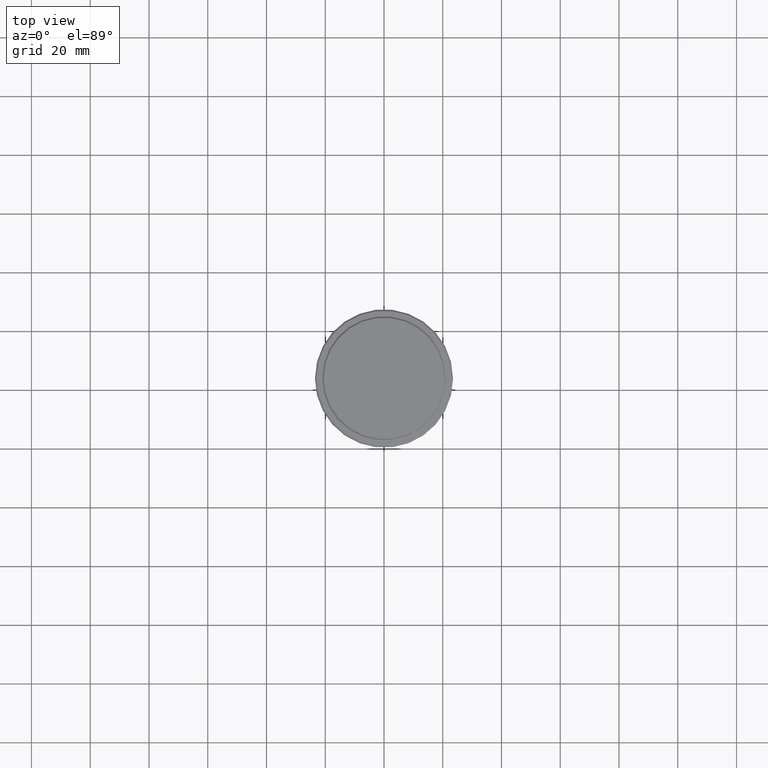
[diagram: clean part render]
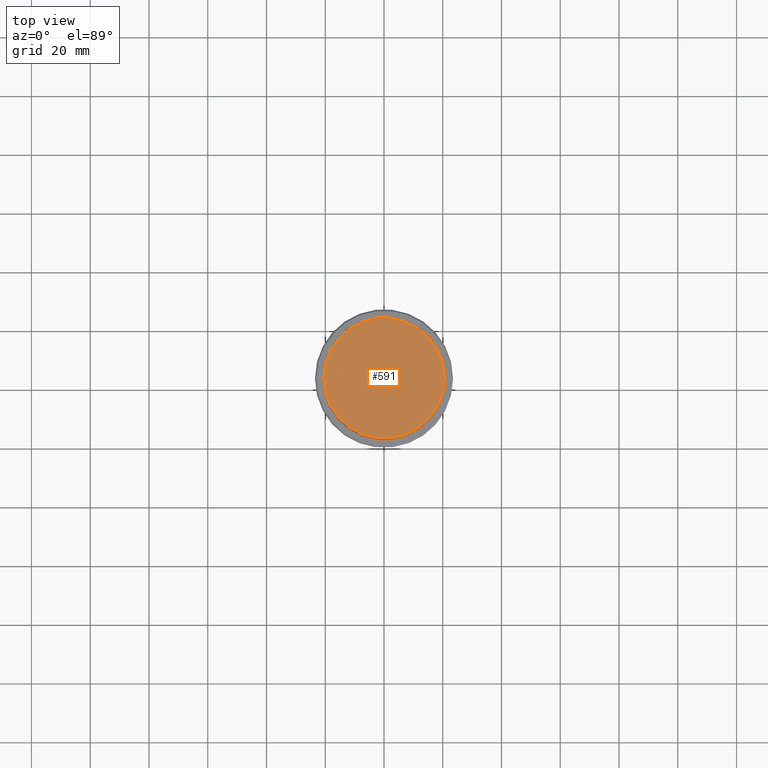
[diagram: same view with one face highlighted and labeled with its STEP entity id]
A machine part, top view. The second image highlights one B-rep face of the part: STEP entity #591.
In plain terms, the highlighted planar face has unit normal (0, -0, 1).
Its self-contained STEP definition (entity closure, byte-faithful):
#33 = VERTEX_POINT ( 'NONE', #765 ) ;
#72 = DIRECTION ( 'NONE',  ( 0.000000000000000000, -0.000000000000000000, 1.000000000000000000 ) ) ;
#89 = DIRECTION ( 'NONE',  ( 1.000000000000000000, 0.000000000000000000, 0.000000000000000000 ) ) ;
#102 = CARTESIAN_POINT ( 'NONE',  ( 0.000000000000000000, 0.000000000000000000, 0.000000000000000000 ) ) ;
#110 = ORIENTED_EDGE ( 'NONE', *, *, #1354, .T. ) ;
#125 = AXIS2_PLACEMENT_3D ( 'NONE', #1059, #668, #655 ) ;
#428 = EDGE_CURVE ( 'NONE', #1063, #33, #856, .T. ) ;
#475 = DIRECTION ( 'NONE',  ( 1.000000000000000000, 0.000000000000000000, 0.000000000000000000 ) ) ;
#591 = ADVANCED_FACE ( 'NONE', ( #1085 ), #967, .T. ) ;
#655 = DIRECTION ( 'NONE',  ( 1.000000000000000000, 0.000000000000000000, 0.000000000000000000 ) ) ;
#668 = DIRECTION ( 'NONE',  ( -0.000000000000000000, -0.000000000000000000, 1.000000000000000000 ) ) ;
#763 = CARTESIAN_POINT ( 'NONE',  ( -20.49999999999993605, 0.000000000000000000, 0.000000000000000000 ) ) ;
#765 = CARTESIAN_POINT ( 'NONE',  ( 20.49999999999993605, 2.541142108230753930E-15, 0.000000000000000000 ) ) ;
#787 = ORIENTED_EDGE ( 'NONE', *, *, #428, .T. ) ;
#856 = CIRCLE ( 'NONE', #125, 20.49999999999993605 ) ;
#872 = DIRECTION ( 'NONE',  ( -0.000000000000000000, -0.000000000000000000, 1.000000000000000000 ) ) ;
#967 = PLANE ( 'NONE',  #1341 ) ;
#974 = CARTESIAN_POINT ( 'NONE',  ( 0.000000000000000000, 0.000000000000000000, 0.000000000000000000 ) ) ;
#1059 = CARTESIAN_POINT ( 'NONE',  ( 0.000000000000000000, 0.000000000000000000, 0.000000000000000000 ) ) ;
#1063 = VERTEX_POINT ( 'NONE', #763 ) ;
#1085 = FACE_OUTER_BOUND ( 'NONE', #1248, .T. ) ;
#1248 = EDGE_LOOP ( 'NONE', ( #787, #110 ) ) ;
#1256 = CIRCLE ( 'NONE', #1344, 20.49999999999993605 ) ;
#1341 = AXIS2_PLACEMENT_3D ( 'NONE', #974, #72, #89 ) ;
#1344 = AXIS2_PLACEMENT_3D ( 'NONE', #102, #872, #475 ) ;
#1354 = EDGE_CURVE ( 'NONE', #33, #1063, #1256, .T. ) ;